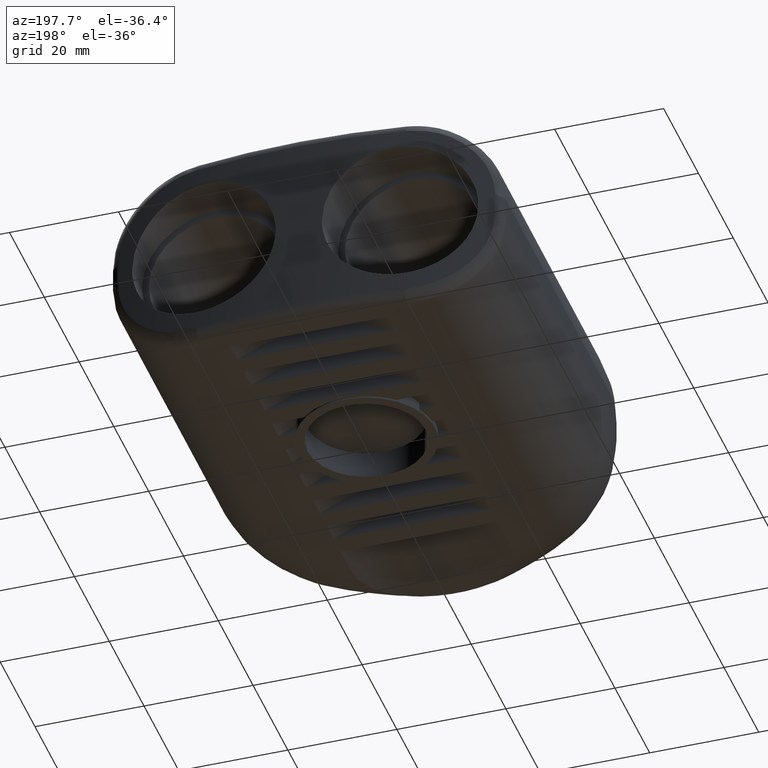
[diagram: clean part render]
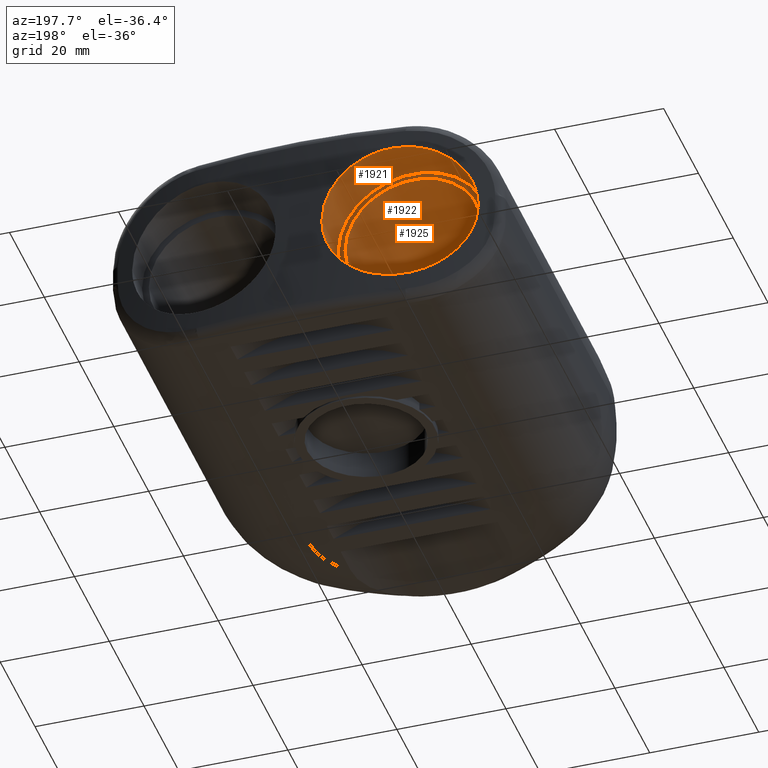
[diagram: same view with one multi-face feature highlighted, each face labeled with its STEP entity id]
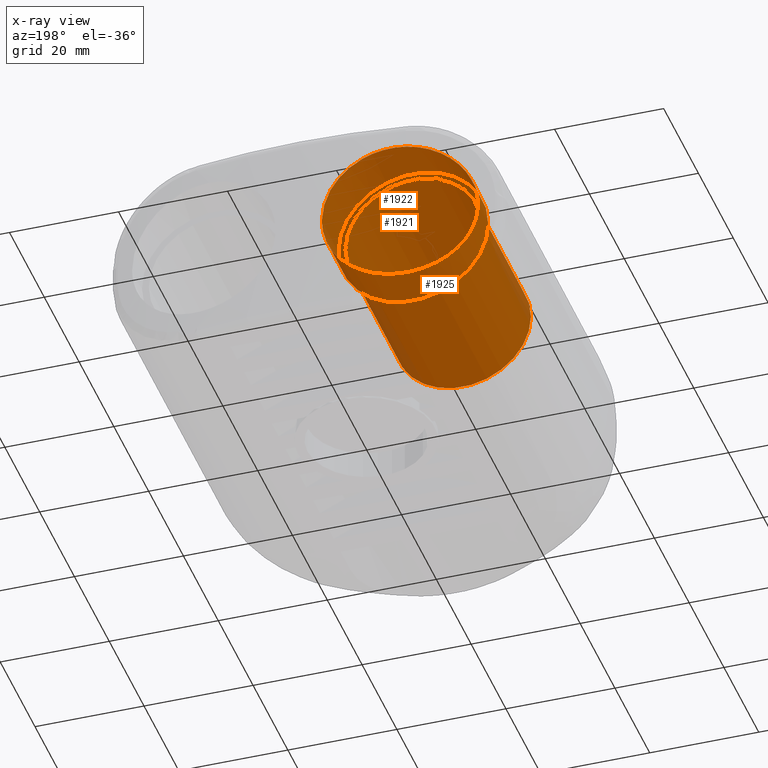
[diagram: x-ray of the same camera — body ghosted, the whole feature saturated]
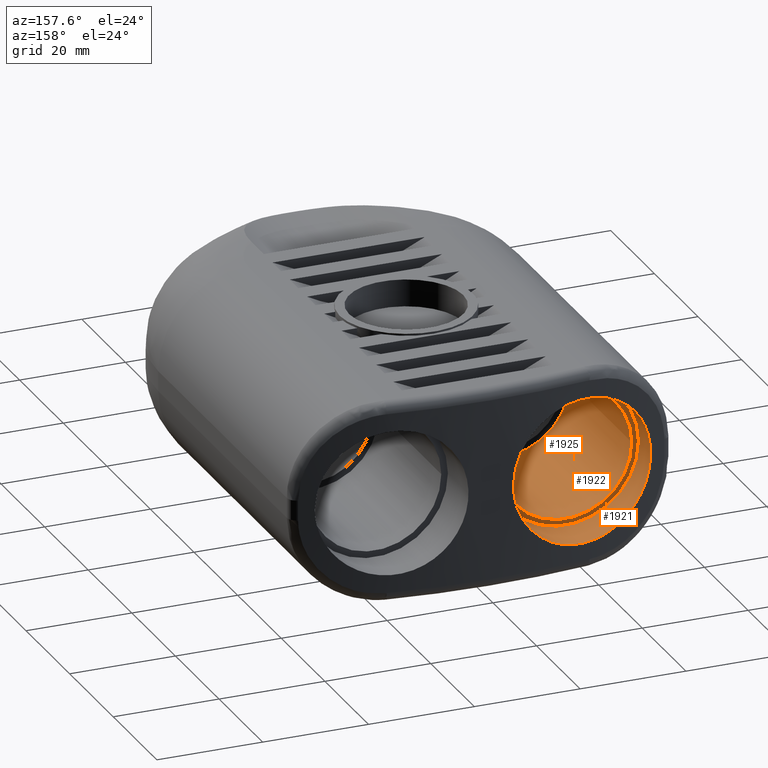
[diagram: same view with one multi-face feature highlighted, each face labeled with its STEP entity id]
A machine part, auxiliary view. The highlighted faces form ONE feature: a stepped (counterbored) hole: 2 coaxial cylindrical walls of radii 12.5 -> 13.75 mm joined by 1 annular planar shoulder face(s). The faces share edges in the B-rep.
The next image is the same camera in x-ray: the body ghosted and the whole hole feature saturated, so the bore chain is visible through the body.
A second angle (auxiliary view) of the same feature is appended — it is thin or edge-on in the first view.
Their STEP definitions:
[1] entity #1921 (Cylinder):
#292=B_SPLINE_CURVE_WITH_KNOTS('',3,(#3126,#3127,#3128,#3129,#3130,#3131,
#3132,#3133,#3134,#3135,#3136,#3137,#3138,#3139,#3140,#3141,#3142,#3143,
#3144,#3145,#3146,#3147,#3148,#3149,#3150,#3151,#3152,#3153,#3154,#3155,
#3156,#3157,#3158,#3159),.UNSPECIFIED.,.T.,.F.,(4,2,2,2,2,2,2,2,2,2,2,2,
2,2,2,2,4),(0.,0.517811243920953,1.03562248784191,1.5561506466662,2.0766788054905,
2.60299384883886,3.12930889218723,3.64773643640668,4.16616398062612,4.68459152484557,
5.20301906906501,5.72933411241338,6.25564915576175,6.77617731458604,7.29670547341034,
7.81451671733129,8.33232796125224),.UNSPECIFIED.);
#389=FACE_BOUND('',#567,.T.);
#432=FACE_OUTER_BOUND('',#566,.T.);
#566=EDGE_LOOP('',(#1351));
#567=EDGE_LOOP('',(#1352));
#729=CIRCLE('',#2071,13.75);
#857=VERTEX_POINT('',#3125);
#858=VERTEX_POINT('',#3160);
#1053=EDGE_CURVE('',#857,#857,#292,.T.);
#1054=EDGE_CURVE('',#858,#858,#729,.T.);
#1351=ORIENTED_EDGE('',*,*,#1053,.F.);
#1352=ORIENTED_EDGE('',*,*,#1054,.T.);
#1864=CYLINDRICAL_SURFACE('',#2070,13.75);
#1921=ADVANCED_FACE('',(#432,#389),#1864,.F.);
#2070=AXIS2_PLACEMENT_3D('',#3124,#2342,#2343);
#2071=AXIS2_PLACEMENT_3D('',#3161,#2344,#2345);
#2342=DIRECTION('center_axis',(0.,-1.,0.));
#2343=DIRECTION('ref_axis',(1.,0.,0.));
#2344=DIRECTION('center_axis',(0.,-1.,0.));
#2345=DIRECTION('ref_axis',(1.,0.,0.));
#3124=CARTESIAN_POINT('Origin',(-18.,79.2,0.));
#3125=CARTESIAN_POINT('',(-4.25,79.1322742065416,5.55111512312578E-16));
#3126=CARTESIAN_POINT('Ctrl Pts',(-4.25,79.1322742065416,5.55111512312578E-16));
#3127=CARTESIAN_POINT('Ctrl Pts',(-4.25,79.1322742065416,1.72603747973651));
#3128=CARTESIAN_POINT('Ctrl Pts',(-4.59489647677749,79.1226791203977,3.56708801791549));
#3129=CARTESIAN_POINT('Ctrl Pts',(-5.99707486195055,79.0669620074711,6.95346707903556));
#3130=CARTESIAN_POINT('Ctrl Pts',(-7.05436102678437,79.0189229787936,8.49876202714491));
#3131=CARTESIAN_POINT('Ctrl Pts',(-9.4983562807018,78.8670415019513,10.9448301753672));
#3132=CARTESIAN_POINT('Ctrl Pts',(-11.0496563215334,78.7524450918493,12.0050934432667));
#3133=CARTESIAN_POINT('Ctrl Pts',(-14.4410019903154,78.4269002285342,13.407575391031));
#3134=CARTESIAN_POINT('Ctrl Pts',(-16.280777740976,78.2140304314557,13.75));
#3135=CARTESIAN_POINT('Ctrl Pts',(-19.7383354242112,77.7431302536139,13.75));
#3136=CARTESIAN_POINT('Ctrl Pts',(-21.5869774049519,77.4528803334635,13.4007232309878));
#3137=CARTESIAN_POINT('Ctrl Pts',(-24.9831211778692,76.8507649417162,11.9867346163321));
#3138=CARTESIAN_POINT('Ctrl Pts',(-26.5310222854006,76.5407485951511,10.922195083119));
#3139=CARTESIAN_POINT('Ctrl Pts',(-28.9584469967061,76.0243598744768,8.47912608721508));
#3140=CARTESIAN_POINT('Ctrl Pts',(-30.0082583631204,75.7825762058504,6.94259534796156));
#3141=CARTESIAN_POINT('Ctrl Pts',(-31.4042004514283,75.4523481456164,3.56725417516998));
#3142=CARTESIAN_POINT('Ctrl Pts',(-31.75,75.3661047976105,1.72809181406482));
#3143=CARTESIAN_POINT('Ctrl Pts',(-31.75,75.3661047976105,-1.72809181406482));
#3144=CARTESIAN_POINT('Ctrl Pts',(-31.4042004514283,75.4523481456164,-3.56725417516998));
#3145=CARTESIAN_POINT('Ctrl Pts',(-30.0082583631204,75.7825762058504,-6.94259534796156));
#3146=CARTESIAN_POINT('Ctrl Pts',(-28.9584469967061,76.0243598744768,-8.47912608721508));
#3147=CARTESIAN_POINT('Ctrl Pts',(-26.5310222854006,76.5407485951511,-10.922195083119));
#3148=CARTESIAN_POINT('Ctrl Pts',(-24.9831211778692,76.8507649417162,-11.9867346163321));
#3149=CARTESIAN_POINT('Ctrl Pts',(-21.5869774049519,77.4528803334635,-13.4007232309878));
#3150=CARTESIAN_POINT('Ctrl Pts',(-19.7383354242112,77.7431302536139,-13.75));
#3151=CARTESIAN_POINT('Ctrl Pts',(-16.280777740976,78.2140304314557,-13.75));
#3152=CARTESIAN_POINT('Ctrl Pts',(-14.4410019903154,78.4269002285342,-13.407575391031));
#3153=CARTESIAN_POINT('Ctrl Pts',(-11.0496563215334,78.7524450918493,-12.0050934432667));
#3154=CARTESIAN_POINT('Ctrl Pts',(-9.49835628070181,78.8670415019513,-10.9448301753672));
#3155=CARTESIAN_POINT('Ctrl Pts',(-7.05436102678438,79.0189229787936,-8.49876202714491));
#3156=CARTESIAN_POINT('Ctrl Pts',(-5.99707486195055,79.0669620074711,-6.95346707903557));
#3157=CARTESIAN_POINT('Ctrl Pts',(-4.59489647677749,79.1226791203977,-3.5670880179155));
#3158=CARTESIAN_POINT('Ctrl Pts',(-4.25,79.1322742065416,-1.72603747973651));
#3159=CARTESIAN_POINT('Ctrl Pts',(-4.25,79.1322742065416,-1.11022302462516E-15));
#3160=CARTESIAN_POINT('',(-31.75,69.7,1.68388934882761E-15));
#3161=CARTESIAN_POINT('Origin',(-18.,69.7,0.));
[2] entity #1925 (Cylinder):
#393=FACE_BOUND('',#575,.T.);
#436=FACE_OUTER_BOUND('',#574,.T.);
#574=EDGE_LOOP('',(#1359));
#575=EDGE_LOOP('',(#1360));
#730=CIRCLE('',#2073,12.5);
#733=CIRCLE('',#2079,12.5);
#859=VERTEX_POINT('',#3163);
#863=VERTEX_POINT('',#3207);
#1055=EDGE_CURVE('',#859,#859,#730,.T.);
#1059=EDGE_CURVE('',#863,#863,#733,.T.);
#1359=ORIENTED_EDGE('',*,*,#1055,.T.);
#1360=ORIENTED_EDGE('',*,*,#1059,.T.);
#1866=CYLINDRICAL_SURFACE('',#2078,12.5);
#1925=ADVANCED_FACE('',(#436,#393),#1866,.F.);
#2073=AXIS2_PLACEMENT_3D('',#3164,#2348,#2349);
#2078=AXIS2_PLACEMENT_3D('',#3206,#2358,#2359);
#2079=AXIS2_PLACEMENT_3D('',#3208,#2360,#2361);
#2348=DIRECTION('center_axis',(0.,1.,0.));
#2349=DIRECTION('ref_axis',(1.,0.,0.));
#2358=DIRECTION('center_axis',(0.,-1.,0.));
#2359=DIRECTION('ref_axis',(1.,0.,0.));
#2360=DIRECTION('center_axis',(0.,-1.,0.));
#2361=DIRECTION('ref_axis',(1.,0.,0.));
#3163=CARTESIAN_POINT('',(-30.5,69.7,1.53080849893419E-15));
#3164=CARTESIAN_POINT('Origin',(-18.,69.7,0.));
#3206=CARTESIAN_POINT('Origin',(-18.,79.2,0.));
#3207=CARTESIAN_POINT('',(-30.5,41.2,1.53080849893419E-15));
#3208=CARTESIAN_POINT('Origin',(-18.,41.2,0.));
[3] entity #1922 (Plane):
#324=PLANE('',#2072);
#390=FACE_BOUND('',#569,.T.);
#433=FACE_OUTER_BOUND('',#568,.T.);
#568=EDGE_LOOP('',(#1353));
#569=EDGE_LOOP('',(#1354));
#729=CIRCLE('',#2071,13.75);
#730=CIRCLE('',#2073,12.5);
#858=VERTEX_POINT('',#3160);
#859=VERTEX_POINT('',#3163);
#1054=EDGE_CURVE('',#858,#858,#729,.T.);
#1055=EDGE_CURVE('',#859,#859,#730,.T.);
#1353=ORIENTED_EDGE('',*,*,#1054,.F.);
#1354=ORIENTED_EDGE('',*,*,#1055,.F.);
#1922=ADVANCED_FACE('',(#433,#390),#324,.T.);
#2071=AXIS2_PLACEMENT_3D('',#3161,#2344,#2345);
#2072=AXIS2_PLACEMENT_3D('',#3162,#2346,#2347);
#2073=AXIS2_PLACEMENT_3D('',#3164,#2348,#2349);
#2344=DIRECTION('center_axis',(0.,-1.,0.));
#2345=DIRECTION('ref_axis',(1.,0.,0.));
#2346=DIRECTION('center_axis',(0.,1.,0.));
#2347=DIRECTION('ref_axis',(0.,0.,1.));
#2348=DIRECTION('center_axis',(0.,1.,0.));
#2349=DIRECTION('ref_axis',(1.,0.,0.));
#3160=CARTESIAN_POINT('',(-31.75,69.7,1.68388934882761E-15));
#3161=CARTESIAN_POINT('Origin',(-18.,69.7,0.));
#3162=CARTESIAN_POINT('Origin',(-18.,69.7,0.));
#3163=CARTESIAN_POINT('',(-30.5,69.7,1.53080849893419E-15));
#3164=CARTESIAN_POINT('Origin',(-18.,69.7,0.));